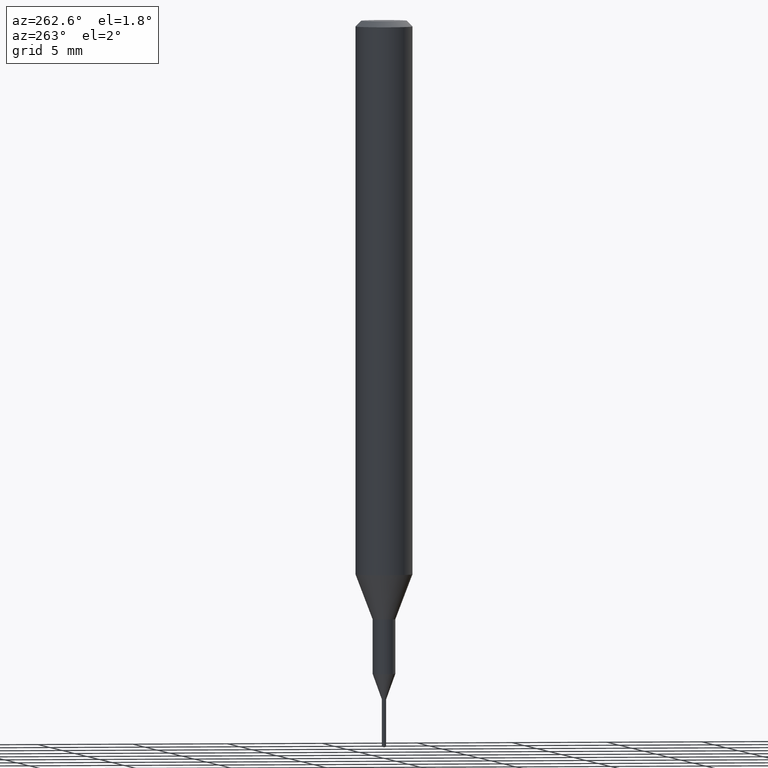
[diagram: clean part render]
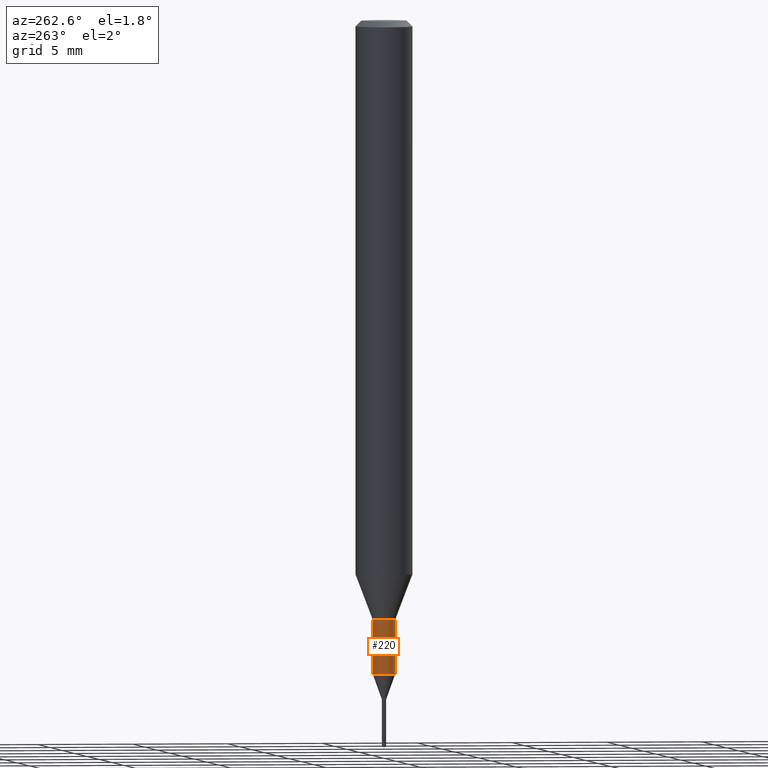
[diagram: same view with one face highlighted and labeled with its STEP entity id]
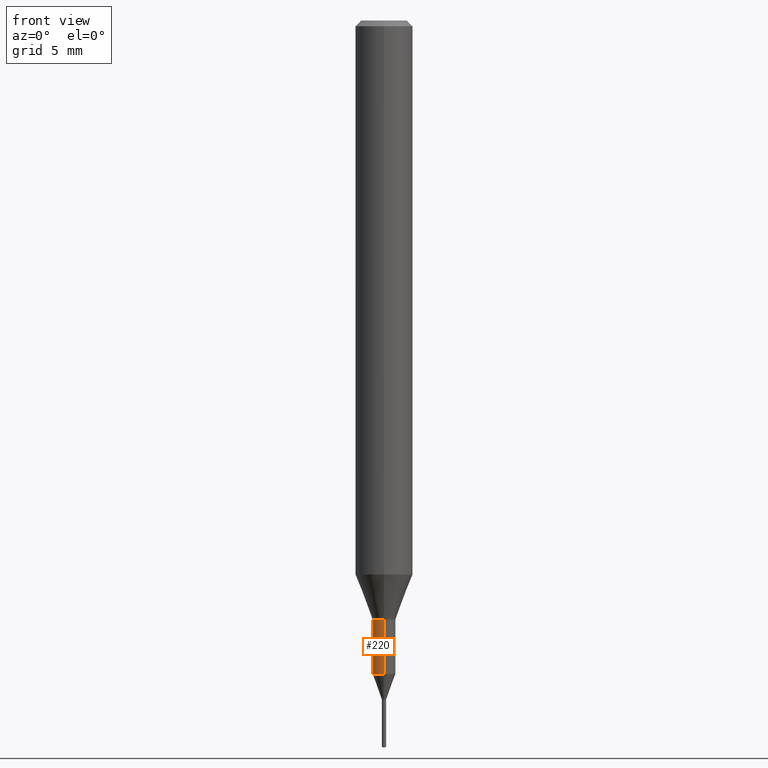
[diagram: same view with one face highlighted and labeled with its STEP entity id]
A machine part, auxiliary view. The second image highlights one B-rep face of the part: STEP entity #220.
A second angle (front view) of the same face is appended — the face is thin or edge-on in the first view.
In plain terms, the highlighted cylindrical surface (edge-blend (fillet) strip) has radius 0.5999 mm, axis along (-0, -0, 1).
Its self-contained STEP definition (entity closure, byte-faithful):
#140=VERTEX_POINT('',#320);
#170=VERTEX_POINT('',#355);
#186=EDGE_CURVE('',#188,#140,#373,.T.);
#188=VERTEX_POINT('',#375);
#208=EDGE_CURVE('',#170,#140,#398,.T.);
#220=ADVANCED_FACE('',(#411),#412,.T.);
#232=VERTEX_POINT('',#425);
#260=EDGE_CURVE('',#170,#232,#457,.T.);
#262=EDGE_CURVE('',#232,#188,#459,.T.);
#320=CARTESIAN_POINT('',(0.0,0.59995,-34.154));
#355=CARTESIAN_POINT('',(7.34702581975735E-017,-0.59995,-34.154));
#373=LINE('',#585,#586);
#375=CARTESIAN_POINT('',(0.0,0.59995,-31.3));
#398=CIRCLE('',#617,0.59995);
#411=FACE_OUTER_BOUND('',#634,.T.);
#412=CYLINDRICAL_SURFACE('',#635,0.59995);
#425=CARTESIAN_POINT('',(7.34702581975735E-017,-0.59995,-31.3));
#457=LINE('',#691,#692);
#459=CIRCLE('',#695,0.59995);
#585=CARTESIAN_POINT('',(-7.34702581975735E-017,0.59995,-32.727));
#586=VECTOR('',#822,1.0);
#617=AXIS2_PLACEMENT_3D('',#844,#845,#846);
#634=EDGE_LOOP('',(#863,#864,#865,#866));
#635=AXIS2_PLACEMENT_3D('',#867,#868,#869);
#691=CARTESIAN_POINT('',(7.34702581975735E-017,-0.59995,-32.727));
#692=VECTOR('',#924,1.0);
#695=AXIS2_PLACEMENT_3D('',#925,#926,#927);
#822=DIRECTION('',(0.0,0.0,-1.0));
#844=CARTESIAN_POINT('',(0.0,0.0,-34.154));
#845=DIRECTION('',(0.0,0.0,-1.0));
#846=DIRECTION('',(0.0,1.0,0.0));
#863=ORIENTED_EDGE('',*,*,#186,.T.);
#864=ORIENTED_EDGE('',*,*,#208,.F.);
#865=ORIENTED_EDGE('',*,*,#260,.T.);
#866=ORIENTED_EDGE('',*,*,#262,.T.);
#867=CARTESIAN_POINT('',(0.0,0.0,-32.727));
#868=DIRECTION('',(-0.0,-0.0,1.0));
#869=DIRECTION('',(0.0,1.0,0.0));
#924=DIRECTION('',(-0.0,-0.0,1.0));
#925=CARTESIAN_POINT('',(0.0,0.0,-31.3));
#926=DIRECTION('',(0.0,0.0,-1.0));
#927=DIRECTION('',(0.0,1.0,0.0));